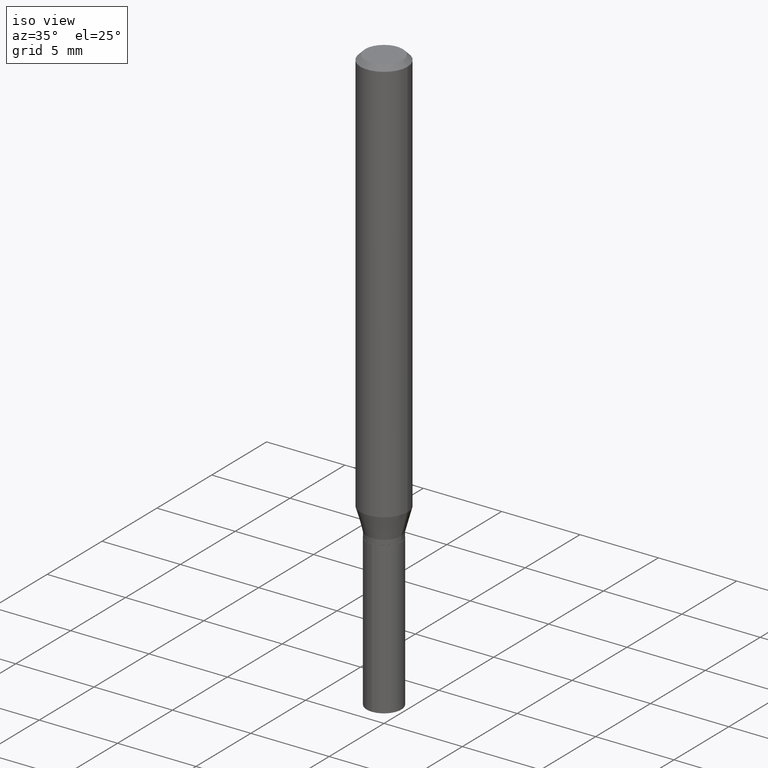
[diagram: clean part render]
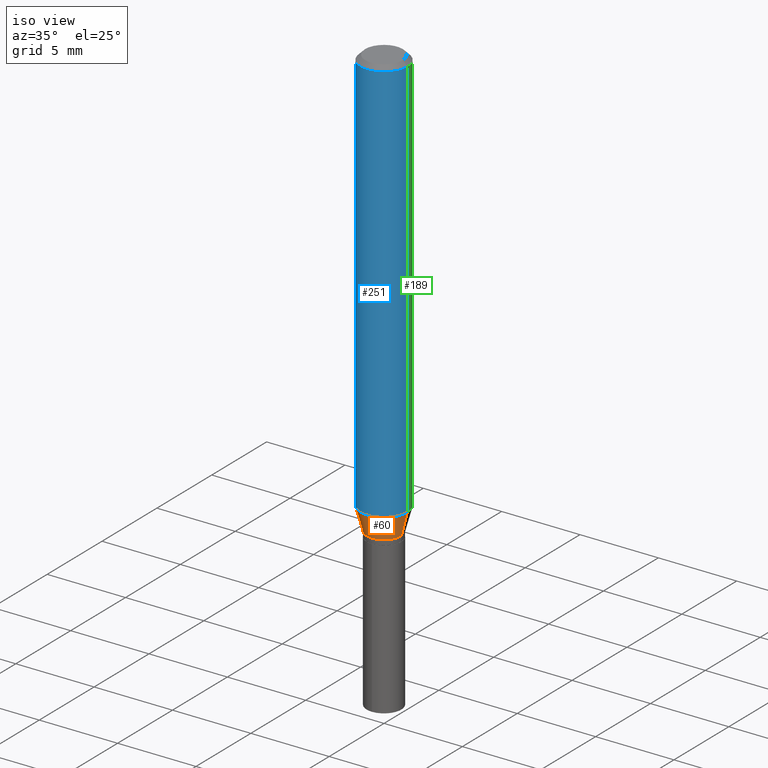
[diagram: same view with three faces highlighted in distinct colors, each labeled with its STEP entity id]
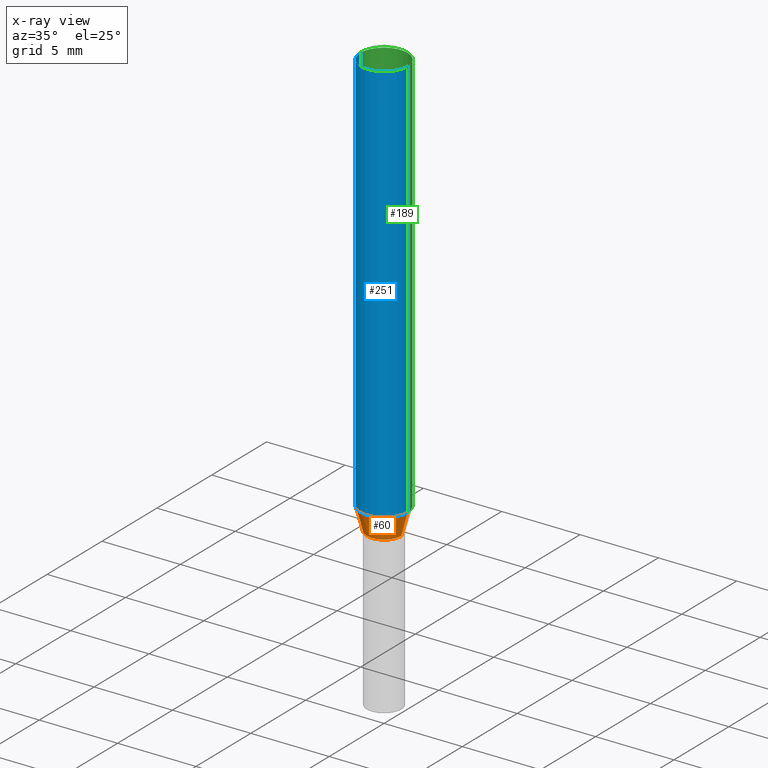
[diagram: x-ray of the same camera — body ghosted, the three highlighted faces saturated]
A machine part, iso view with three faces highlighted in distinct colors.
The next image is the same camera in x-ray (body ghosted, the three faces saturated) — at least one of them is partly hidden behind the body in this view.
Their STEP definitions:

[orange] entity #60 — the highlighted conical surface has half-angle 15 deg.
#17 = DIRECTION ( 'NONE',  ( -2.445468806185136597E-29, 3.491481338843145583E-15, 1.000000000000000000 ) ) ;
#26 = CARTESIAN_POINT ( 'NONE',  ( 0.04349999999999996925, -4.079446796304329678E-15, -1.081399999999999917 ) ) ;
#46 = EDGE_CURVE ( 'NONE', #424, #388, #198, .T. ) ;
#53 = LINE ( 'NONE', #26, #382 ) ;
#59 = DIRECTION ( 'NONE',  ( 0.2588190451025209615, 1.565188264969624926E-15, 0.9659258262890682012 ) ) ;
#60 = ADVANCED_FACE ( 'NONE', ( #99 ), #343, .T. ) ;
#76 = EDGE_CURVE ( 'NONE', #432, #388, #53, .T. ) ;
#86 = CARTESIAN_POINT ( 'NONE',  ( 2.644529967008606337E-29, -3.775687919824977013E-15, -1.081399999999999917 ) ) ;
#98 = EDGE_CURVE ( 'NONE', #374, #432, #261, .T. ) ;
#99 = FACE_OUTER_BOUND ( 'NONE', #259, .T. ) ;
#108 = ORIENTED_EDGE ( 'NONE', *, *, #46, .F. ) ;
#124 = CARTESIAN_POINT ( 'NONE',  ( -0.05905000000000013016, -3.153489935942384186E-15, -1.023366609942303329 ) ) ;
#126 = DIRECTION ( 'NONE',  ( -2.445468806185136597E-29, 3.491481338843145583E-15, 1.000000000000000000 ) ) ;
#141 = EDGE_CURVE ( 'NONE', #374, #424, #366, .T. ) ;
#154 = AXIS2_PLACEMENT_3D ( 'NONE', #482, #126, #288 ) ;
#165 = DIRECTION ( 'NONE',  ( 1.000000000000000000, -6.982962677686270655E-15, 0.000000000000000000 ) ) ;
#170 = CARTESIAN_POINT ( 'NONE',  ( -0.04349999999999996925, -3.466601829769333947E-15, -1.081399999999999917 ) ) ;
#187 = CARTESIAN_POINT ( 'NONE',  ( 0.04349999999999996925, -4.079446796304329678E-15, -1.081399999999999917 ) ) ;
#198 = CIRCLE ( 'NONE', #154, 0.05905000000000013016 ) ;
#199 = CARTESIAN_POINT ( 'NONE',  ( 0.05905000000000013016, -3.985409367526099388E-15, -1.023366609942303329 ) ) ;
#216 = VECTOR ( 'NONE', #328, 39.37007874015748143 ) ;
#244 = DIRECTION ( 'NONE',  ( -2.445468806185136597E-29, 3.491481338843145583E-15, 1.000000000000000000 ) ) ;
#259 = EDGE_LOOP ( 'NONE', ( #296, #274, #349, #108 ) ) ;
#261 = CIRCLE ( 'NONE', #277, 0.04349999999999996925 ) ;
#266 = CARTESIAN_POINT ( 'NONE',  ( -0.04349999999999996925, -3.488598162204045286E-15, -1.081399999999999917 ) ) ;
#274 = ORIENTED_EDGE ( 'NONE', *, *, #98, .T. ) ;
#277 = AXIS2_PLACEMENT_3D ( 'NONE', #403, #244, #435 ) ;
#288 = DIRECTION ( 'NONE',  ( 1.000000000000000000, -6.982962677686265133E-15, 0.000000000000000000 ) ) ;
#296 = ORIENTED_EDGE ( 'NONE', *, *, #141, .F. ) ;
#318 = AXIS2_PLACEMENT_3D ( 'NONE', #86, #17, #165 ) ;
#328 = DIRECTION ( 'NONE',  ( -0.2588190451025209615, 5.211531920934547097E-15, 0.9659258262890682012 ) ) ;
#343 = CONICAL_SURFACE ( 'NONE', #318, 0.04349999999999996925, 0.2617993877991496299 ) ;
#349 = ORIENTED_EDGE ( 'NONE', *, *, #76, .T. ) ;
#366 = LINE ( 'NONE', #170, #216 ) ;
#374 = VERTEX_POINT ( 'NONE', #266 ) ;
#382 = VECTOR ( 'NONE', #59, 39.37007874015748143 ) ;
#388 = VERTEX_POINT ( 'NONE', #199 ) ;
#403 = CARTESIAN_POINT ( 'NONE',  ( 2.644529967008606337E-29, -3.775687919824977013E-15, -1.081399999999999917 ) ) ;
#424 = VERTEX_POINT ( 'NONE', #124 ) ;
#432 = VERTEX_POINT ( 'NONE', #187 ) ;
#435 = DIRECTION ( 'NONE',  ( 1.000000000000000000, -6.982962677686270655E-15, 0.000000000000000000 ) ) ;
#482 = CARTESIAN_POINT ( 'NONE',  ( 2.502611121905334530E-29, -3.573065421408723679E-15, -1.023366609942303329 ) ) ;

[blue] entity #251 — the highlighted cylindrical surface (edge-blend (fillet) strip) has radius 1.4999 mm, axis along (-0, 0, 1).
#16 = VECTOR ( 'NONE', #202, 39.37007874015748143 ) ;
#32 = CARTESIAN_POINT ( 'NONE',  ( 0.05904999999999999832, -4.535783407291118600E-16, -0.01181000000000007565 ) ) ;
#44 = CIRCLE ( 'NONE', #195, 0.05904999999999999832 ) ;
#46 = EDGE_CURVE ( 'NONE', #424, #388, #198, .T. ) ;
#51 = CARTESIAN_POINT ( 'NONE',  ( -0.05904999999999999832, -1.387574422543890422E-15, -0.01181000000000007565 ) ) ;
#73 = CARTESIAN_POINT ( 'NONE',  ( 0.000000000000000000, 0.000000000000000000, 0.000000000000000000 ) ) ;
#82 = EDGE_LOOP ( 'NONE', ( #338, #231, #476, #278 ) ) ;
#117 = EDGE_CURVE ( 'NONE', #424, #461, #326, .T. ) ;
#124 = CARTESIAN_POINT ( 'NONE',  ( -0.05905000000000013016, -3.153489935942384186E-15, -1.023366609942303329 ) ) ;
#125 = EDGE_CURVE ( 'NONE', #388, #159, #131, .T. ) ;
#126 = DIRECTION ( 'NONE',  ( -2.445468806185136597E-29, 3.491481338843145583E-15, 1.000000000000000000 ) ) ;
#131 = LINE ( 'NONE', #286, #311 ) ;
#146 = FACE_OUTER_BOUND ( 'NONE', #82, .T. ) ;
#152 = DIRECTION ( 'NONE',  ( -2.445468806185136597E-29, 3.491481338843145583E-15, 1.000000000000000000 ) ) ;
#154 = AXIS2_PLACEMENT_3D ( 'NONE', #482, #126, #288 ) ;
#159 = VERTEX_POINT ( 'NONE', #32 ) ;
#180 = CYLINDRICAL_SURFACE ( 'NONE', #401, 0.05905000000000006771 ) ;
#195 = AXIS2_PLACEMENT_3D ( 'NONE', #226, #152, #237 ) ;
#198 = CIRCLE ( 'NONE', #154, 0.05905000000000013016 ) ;
#199 = CARTESIAN_POINT ( 'NONE',  ( 0.05905000000000013016, -3.985409367526099388E-15, -1.023366609942303329 ) ) ;
#202 = DIRECTION ( 'NONE',  ( -2.445468806185136877E-29, 3.491481338843145188E-15, 1.000000000000000000 ) ) ;
#206 = CARTESIAN_POINT ( 'NONE',  ( -0.05905000000000006771, 4.195754854663396409E-16, -2.904631170795525045E-30 ) ) ;
#220 = DIRECTION ( 'NONE',  ( -2.445468806185136597E-29, 3.491481338843145583E-15, 1.000000000000000000 ) ) ;
#226 = CARTESIAN_POINT ( 'NONE',  ( 2.888098660104664642E-31, -4.123439461173780879E-17, -0.01181000000000007565 ) ) ;
#231 = ORIENTED_EDGE ( 'NONE', *, *, #46, .T. ) ;
#237 = DIRECTION ( 'NONE',  ( 1.000000000000000000, -6.982962677686266711E-15, 0.000000000000000000 ) ) ;
#251 = ADVANCED_FACE ( 'NONE', ( #146 ), #180, .T. ) ;
#278 = ORIENTED_EDGE ( 'NONE', *, *, #438, .F. ) ;
#286 = CARTESIAN_POINT ( 'NONE',  ( 0.05905000000000006771, -4.123439461173745257E-16, 2.879382386107503723E-30 ) ) ;
#288 = DIRECTION ( 'NONE',  ( 1.000000000000000000, -6.982962677686265133E-15, 0.000000000000000000 ) ) ;
#311 = VECTOR ( 'NONE', #440, 39.37007874015748143 ) ;
#326 = LINE ( 'NONE', #206, #16 ) ;
#338 = ORIENTED_EDGE ( 'NONE', *, *, #117, .F. ) ;
#370 = DIRECTION ( 'NONE',  ( 1.000000000000000000, -6.982962677686266711E-15, 4.876176775795936353E-29 ) ) ;
#388 = VERTEX_POINT ( 'NONE', #199 ) ;
#401 = AXIS2_PLACEMENT_3D ( 'NONE', #73, #220, #370 ) ;
#424 = VERTEX_POINT ( 'NONE', #124 ) ;
#438 = EDGE_CURVE ( 'NONE', #461, #159, #44, .T. ) ;
#440 = DIRECTION ( 'NONE',  ( -2.445468806185136877E-29, 3.491481338843145188E-15, 1.000000000000000000 ) ) ;
#461 = VERTEX_POINT ( 'NONE', #51 ) ;
#476 = ORIENTED_EDGE ( 'NONE', *, *, #125, .T. ) ;
#482 = CARTESIAN_POINT ( 'NONE',  ( 2.502611121905334530E-29, -3.573065421408723679E-15, -1.023366609942303329 ) ) ;

[green] entity #189 — the highlighted cylindrical surface (edge-blend (fillet) strip) has radius 1.4999 mm, axis along (-0, 0, 1).
#2 = AXIS2_PLACEMENT_3D ( 'NONE', #38, #453, #109 ) ;
#3 = CYLINDRICAL_SURFACE ( 'NONE', #2, 0.05905000000000006771 ) ;
#16 = VECTOR ( 'NONE', #202, 39.37007874015748143 ) ;
#22 = EDGE_CURVE ( 'NONE', #388, #424, #294, .T. ) ;
#25 = CARTESIAN_POINT ( 'NONE',  ( 2.502611121905334530E-29, -3.573065421408723679E-15, -1.023366609942303329 ) ) ;
#32 = CARTESIAN_POINT ( 'NONE',  ( 0.05904999999999999832, -4.535783407291118600E-16, -0.01181000000000007565 ) ) ;
#38 = CARTESIAN_POINT ( 'NONE',  ( 0.000000000000000000, 0.000000000000000000, 0.000000000000000000 ) ) ;
#45 = ORIENTED_EDGE ( 'NONE', *, *, #125, .F. ) ;
#51 = CARTESIAN_POINT ( 'NONE',  ( -0.05904999999999999832, -1.387574422543890422E-15, -0.01181000000000007565 ) ) ;
#52 = AXIS2_PLACEMENT_3D ( 'NONE', #25, #136, #292 ) ;
#109 = DIRECTION ( 'NONE',  ( 1.000000000000000000, -6.982962677686266711E-15, 4.876176775795936353E-29 ) ) ;
#117 = EDGE_CURVE ( 'NONE', #424, #461, #326, .T. ) ;
#124 = CARTESIAN_POINT ( 'NONE',  ( -0.05905000000000013016, -3.153489935942384186E-15, -1.023366609942303329 ) ) ;
#125 = EDGE_CURVE ( 'NONE', #388, #159, #131, .T. ) ;
#131 = LINE ( 'NONE', #286, #311 ) ;
#136 = DIRECTION ( 'NONE',  ( -2.445468806185136597E-29, 3.491481338843145583E-15, 1.000000000000000000 ) ) ;
#142 = CIRCLE ( 'NONE', #442, 0.05904999999999999832 ) ;
#159 = VERTEX_POINT ( 'NONE', #32 ) ;
#189 = ADVANCED_FACE ( 'NONE', ( #344 ), #3, .T. ) ;
#199 = CARTESIAN_POINT ( 'NONE',  ( 0.05905000000000013016, -3.985409367526099388E-15, -1.023366609942303329 ) ) ;
#202 = DIRECTION ( 'NONE',  ( -2.445468806185136877E-29, 3.491481338843145188E-15, 1.000000000000000000 ) ) ;
#206 = CARTESIAN_POINT ( 'NONE',  ( -0.05905000000000006771, 4.195754854663396409E-16, -2.904631170795525045E-30 ) ) ;
#210 = DIRECTION ( 'NONE',  ( -2.445468806185136597E-29, 3.491481338843145583E-15, 1.000000000000000000 ) ) ;
#233 = ORIENTED_EDGE ( 'NONE', *, *, #306, .F. ) ;
#250 = CARTESIAN_POINT ( 'NONE',  ( 2.888098660104664642E-31, -4.123439461173780879E-17, -0.01181000000000007565 ) ) ;
#286 = CARTESIAN_POINT ( 'NONE',  ( 0.05905000000000006771, -4.123439461173745257E-16, 2.879382386107503723E-30 ) ) ;
#292 = DIRECTION ( 'NONE',  ( 1.000000000000000000, -6.982962677686265133E-15, 0.000000000000000000 ) ) ;
#294 = CIRCLE ( 'NONE', #52, 0.05905000000000013016 ) ;
#306 = EDGE_CURVE ( 'NONE', #159, #461, #142, .T. ) ;
#311 = VECTOR ( 'NONE', #440, 39.37007874015748143 ) ;
#326 = LINE ( 'NONE', #206, #16 ) ;
#344 = FACE_OUTER_BOUND ( 'NONE', #464, .T. ) ;
#355 = ORIENTED_EDGE ( 'NONE', *, *, #117, .T. ) ;
#378 = ORIENTED_EDGE ( 'NONE', *, *, #22, .T. ) ;
#388 = VERTEX_POINT ( 'NONE', #199 ) ;
#424 = VERTEX_POINT ( 'NONE', #124 ) ;
#440 = DIRECTION ( 'NONE',  ( -2.445468806185136877E-29, 3.491481338843145188E-15, 1.000000000000000000 ) ) ;
#442 = AXIS2_PLACEMENT_3D ( 'NONE', #250, #210, #455 ) ;
#453 = DIRECTION ( 'NONE',  ( -2.445468806185136597E-29, 3.491481338843145583E-15, 1.000000000000000000 ) ) ;
#455 = DIRECTION ( 'NONE',  ( 1.000000000000000000, -6.982962677686266711E-15, 0.000000000000000000 ) ) ;
#461 = VERTEX_POINT ( 'NONE', #51 ) ;
#464 = EDGE_LOOP ( 'NONE', ( #378, #355, #233, #45 ) ) ;